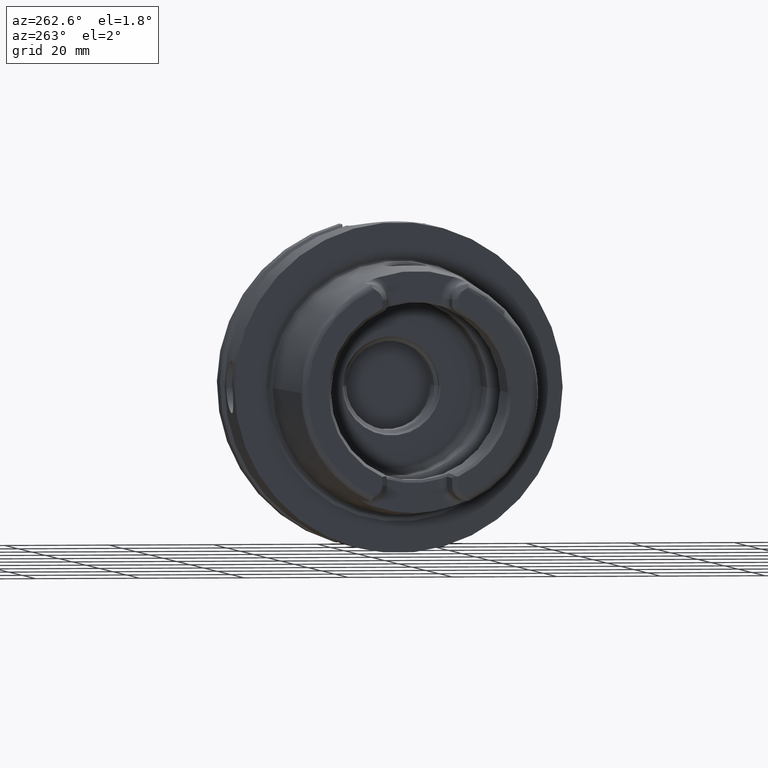
[diagram: clean part render]
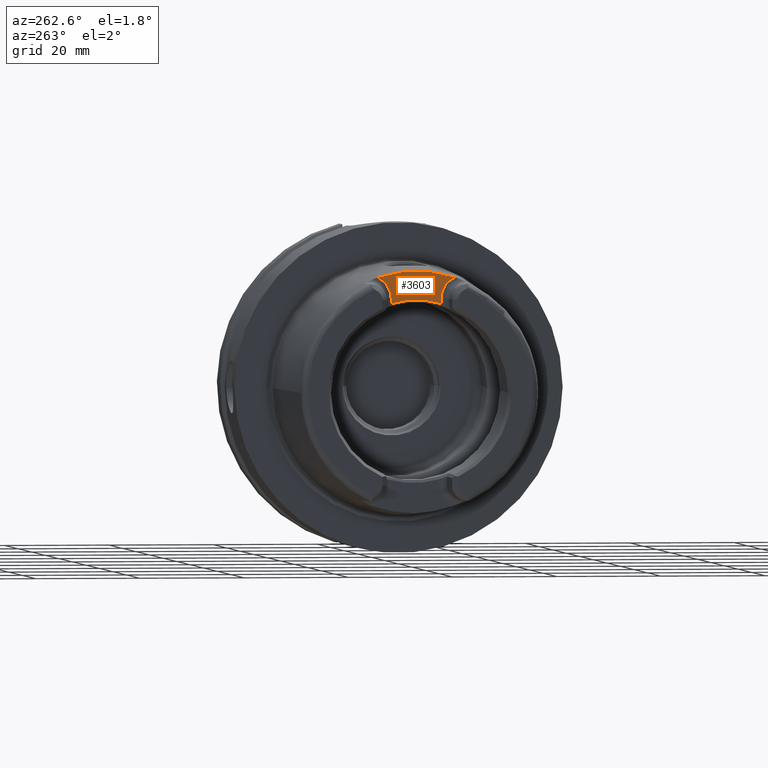
[diagram: same view with one face highlighted and labeled with its STEP entity id]
A machine part, auxiliary view. The second image highlights one B-rep face of the part: STEP entity #3603.
In plain terms, the highlighted planar face has unit normal (-1, 0, 0).
Its self-contained STEP definition (entity closure, byte-faithful):
#9=CARTESIAN_POINT('',(-2.6E1,0.E0,0.E0));
#10=DIRECTION('',(1.E0,0.E0,0.E0));
#11=DIRECTION('',(0.E0,3.233021702202E-1,9.462957818415E-1));
#12=AXIS2_PLACEMENT_3D('',#9,#10,#11);
#508=DIRECTION('',(0.E0,1.645939623868E-11,1.E0));
#509=VECTOR('',#508,8.529199916087E-1);
#510=CARTESIAN_POINT('',(-2.6E1,4.769999999986E0,1.681708000839E1));
#511=LINE('',#510,#509);
#512=CARTESIAN_POINT('',(-2.6E1,9.27E0,1.767E1));
#513=DIRECTION('',(-1.E0,0.E0,0.E0));
#514=DIRECTION('',(0.E0,-1.E0,0.E0));
#515=AXIS2_PLACEMENT_3D('',#512,#513,#514);
#517=CARTESIAN_POINT('',(-2.6E1,-9.27E0,1.767E1));
#518=DIRECTION('',(-1.E0,0.E0,0.E0));
#519=DIRECTION('',(0.E0,4.062693958732E-1,9.137533463560E-1));
#520=AXIS2_PLACEMENT_3D('',#517,#518,#519);
#522=DIRECTION('',(0.E0,1.641566002193E-11,-1.E0));
#523=VECTOR('',#522,8.529199916084E-1);
#524=CARTESIAN_POINT('',(-2.6E1,-4.770000000001E0,1.767E1));
#525=LINE('',#524,#523);
#526=CARTESIAN_POINT('',(-2.6E1,4.769999999986E0,1.681708000839E1));
#527=CARTESIAN_POINT('',(-2.6E1,4.148583737710E0,1.699873969073E1));
#528=CARTESIAN_POINT('',(-2.6E1,2.894384068626E0,1.728890718055E1));
#529=CARTESIAN_POINT('',(-2.6E1,9.681288020921E-1,1.750922547308E1));
#530=CARTESIAN_POINT('',(-2.6E1,-9.681288020820E-1,1.750922547309E1));
#531=CARTESIAN_POINT('',(-2.6E1,-2.894384068607E0,1.728890718055E1));
#532=CARTESIAN_POINT('',(-2.6E1,-4.148583737703E0,1.699873969073E1));
#533=CARTESIAN_POINT('',(-2.6E1,-4.769999999987E0,1.681708000839E1));
#2737=CARTESIAN_POINT('',(-2.6E1,4.77E0,1.767E1));
#2739=VERTEX_POINT('',#2737);
#2741=CARTESIAN_POINT('',(-2.6E1,-4.77E0,1.767E1));
#2743=VERTEX_POINT('',#2741);
#2745=CARTESIAN_POINT('',(-2.6E1,7.441787718571E0,2.178189005860E1));
#2746=VERTEX_POINT('',#2745);
#2751=CARTESIAN_POINT('',(-2.6E1,-7.441787718571E0,2.178189005860E1));
#2752=VERTEX_POINT('',#2751);
#2789=CARTESIAN_POINT('',(-2.6E1,4.769999999986E0,1.681708000839E1));
#2790=VERTEX_POINT('',#2789);
#2791=CARTESIAN_POINT('',(-2.6E1,-4.769999999987E0,1.681708000839E1));
#2792=VERTEX_POINT('',#2791);
#3589=CARTESIAN_POINT('',(-2.6E1,0.E0,0.E0));
#3590=DIRECTION('',(-1.E0,0.E0,0.E0));
#3591=DIRECTION('',(0.E0,0.E0,1.E0));
#3592=AXIS2_PLACEMENT_3D('',#3589,#3590,#3591);
#3593=PLANE('',#3592);
#3594=ORIENTED_EDGE('',*,*,#3500,.T.);
#3595=ORIENTED_EDGE('',*,*,#3518,.T.);
#3596=ORIENTED_EDGE('',*,*,#3163,.T.);
#3597=ORIENTED_EDGE('',*,*,#3224,.T.);
#3598=ORIENTED_EDGE('',*,*,#3242,.T.);
#3600=ORIENTED_EDGE('',*,*,#3599,.F.);
#3601=EDGE_LOOP('',(#3594,#3595,#3596,#3597,#3598,#3600));
#3602=FACE_OUTER_BOUND('',#3601,.F.);
#3603=ADVANCED_FACE('',(#3602),#3593,.T.);
#13=CIRCLE('',#12,2.301805680272E1);
#516=CIRCLE('',#515,4.5E0);
#521=CIRCLE('',#520,4.5E0);
#534=B_SPLINE_CURVE_WITH_KNOTS('',3,(#526,#527,#528,#529,#530,#531,#532,#533),
.UNSPECIFIED.,.F.,.F.,(4,1,1,1,1,4),(0.E0,2.E-1,4.E-1,6.E-1,8.E-1,1.E0),
.UNSPECIFIED.);
#3163=EDGE_CURVE('',#2746,#2752,#13,.T.);
#3224=EDGE_CURVE('',#2752,#2743,#521,.T.);
#3242=EDGE_CURVE('',#2743,#2792,#525,.T.);
#3500=EDGE_CURVE('',#2790,#2739,#511,.T.);
#3518=EDGE_CURVE('',#2739,#2746,#516,.T.);
#3599=EDGE_CURVE('',#2790,#2792,#534,.T.);